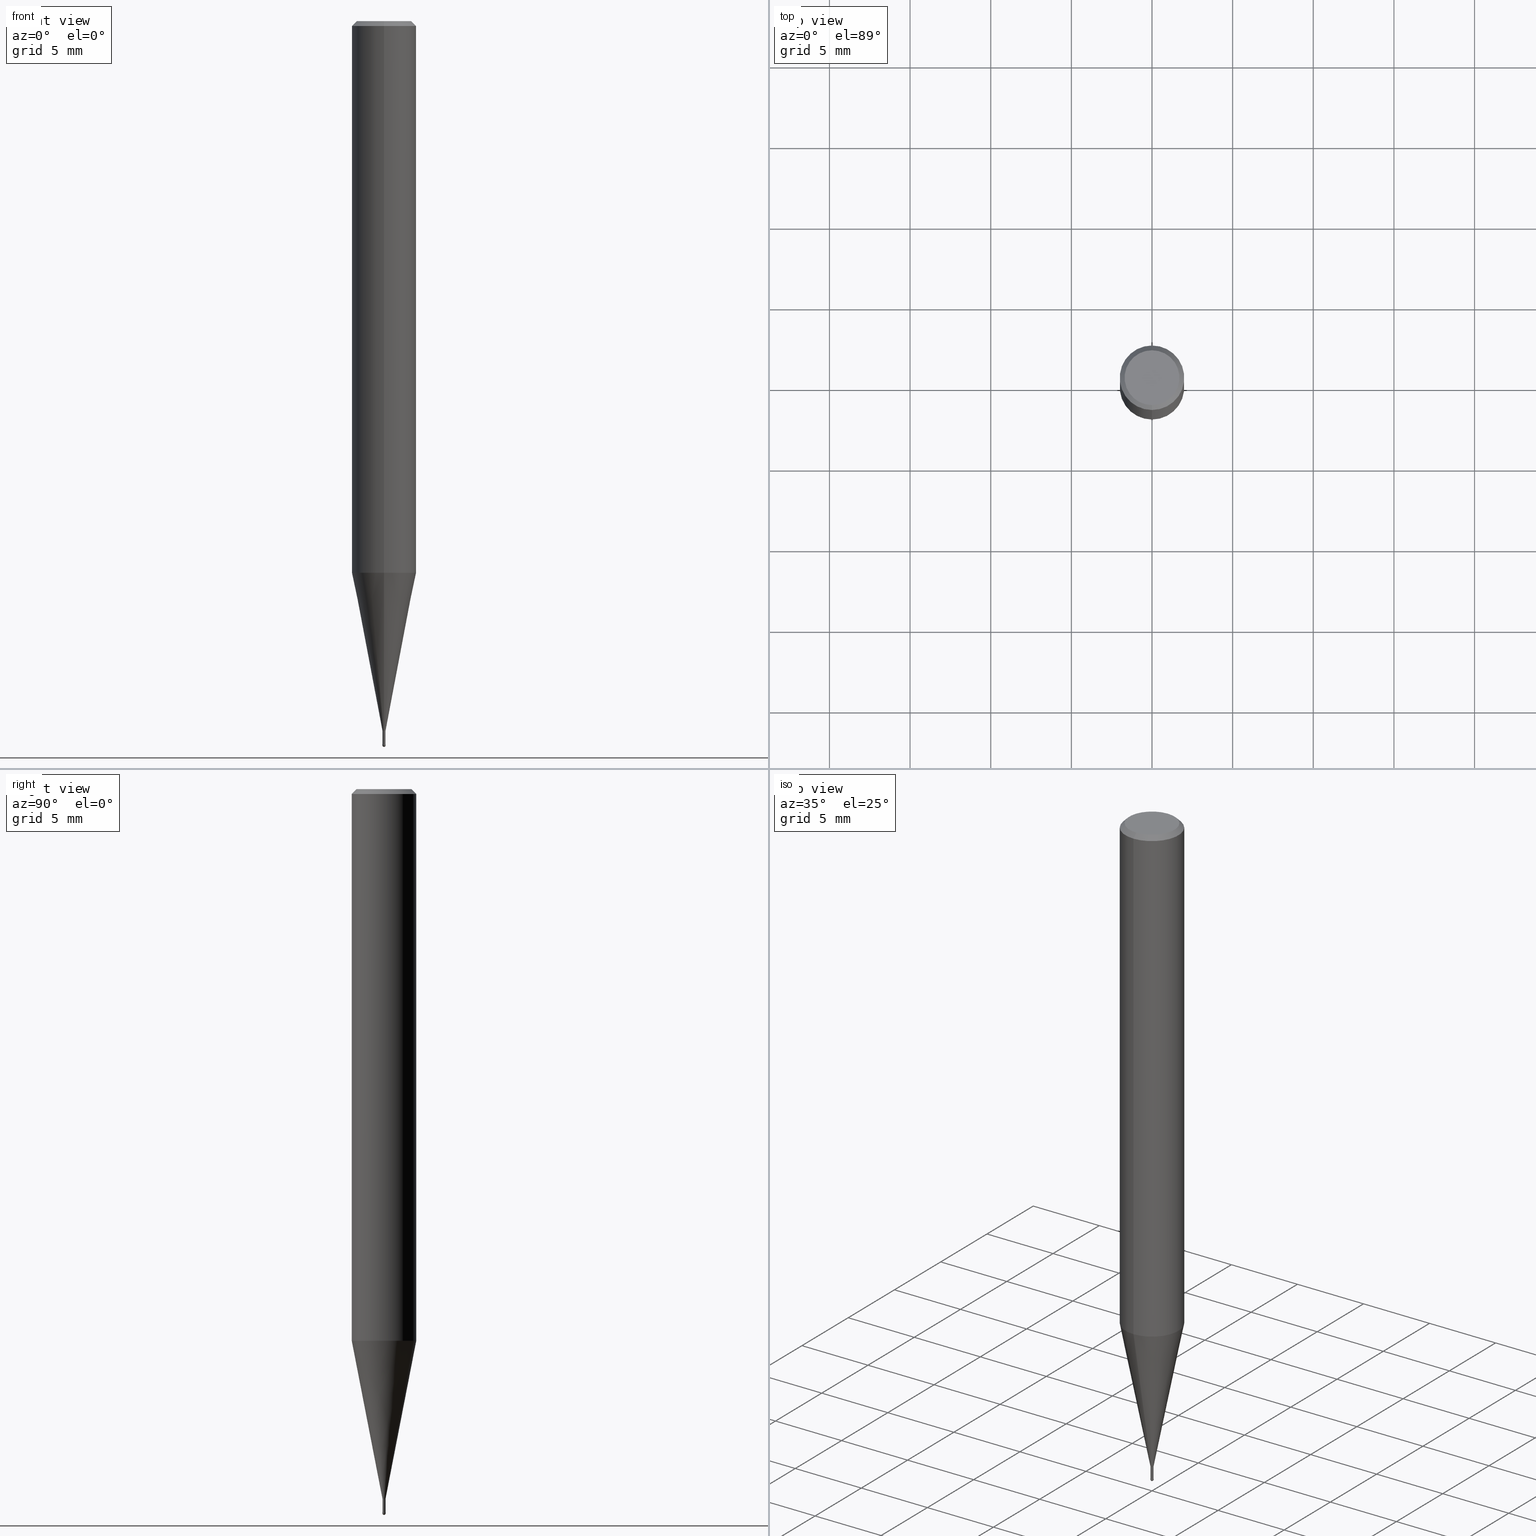
[diagram: canonical four-view strip — front | top / right | iso, engineering-drawing reading convention]
A machine part, canonical four-view strip (front | top / right | iso — engineering-drawing reading convention). The complete STEP part file that produces these views, byte-faithful:
ISO-10303-21;
HEADER;
FILE_DESCRIPTION(('no description'),'unknown implementation level');
FILE_NAME('CSELB2002-010-Huellk.stp','  ',('CIMSOURCE GmbH'),('CADClick - KiM GmbH - www.kimweb.de'),'unknown preprocess','ACIS','unknown authorization');
FILE_SCHEMA(('automotive_design'));
ENDSEC;
DATA;
#1=MECHANICAL_DESIGN_GEOMETRIC_PRESENTATION_REPRESENTATION(' ',(#14,#15,#16,#17,#18,#19,#20,#21,#22,#23,#24,#25,#26,#27,#28,#29,#30,#31,#32,#33,#34,#35,#36,#37,#38,#39,#40,#41,#42,#43,#44,#45,#46,#47,#48,#49,#50,#51,#52,#53,#54,#55,#56,#57,#58,#59,#60,#61,#62,#63,#64,#65,#66,#67,#68,#69,#70,#71,#72,#73,#74),#10);
#2=PRODUCT_DEFINITION_CONTEXT('',#75,'design');
#3=APPLICATION_PROTOCOL_DEFINITION('INTERNATIONAL STANDARD','automotive_design',1994,#75);
#4=PRODUCT_CATEGORY_RELATIONSHIP('NONE','NONE',#76,#77);
#5=SHAPE_DEFINITION_REPRESENTATION(#78,#79);
#6=PRODUCT_DEFINITION_CONTEXT('',#80,'design');
#7=APPLICATION_PROTOCOL_DEFINITION('INTERNATIONAL STANDARD','automotive_design',1994,#80);
#8=PRODUCT_CATEGORY_RELATIONSHIP('NONE','NONE',#81,#82);
#9=SHAPE_DEFINITION_REPRESENTATION(#83,#84);
#10= (GEOMETRIC_REPRESENTATION_CONTEXT(3)GLOBAL_UNCERTAINTY_ASSIGNED_CONTEXT((#87))GLOBAL_UNIT_ASSIGNED_CONTEXT((#89,#90,#91))REPRESENTATION_CONTEXT('NONE','WORKSPACE'));
#14=STYLED_ITEM('',(#93),#94);
#15=STYLED_ITEM('',(#95),#96);
#16=STYLED_ITEM('',(#97),#98);
#17=STYLED_ITEM('',(#99),#100);
#18=STYLED_ITEM('',(#101),#102);
#19=STYLED_ITEM('',(#103),#104);
#20=STYLED_ITEM('',(#105),#106);
#21=STYLED_ITEM('',(#107),#108);
#22=STYLED_ITEM('',(#109),#110);
#23=STYLED_ITEM('',(#111),#112);
#24=STYLED_ITEM('',(#113),#114);
#25=STYLED_ITEM('',(#115),#116);
#26=STYLED_ITEM('',(#117),#118);
#27=STYLED_ITEM('',(#119),#120);
#28=STYLED_ITEM('',(#121),#122);
#29=STYLED_ITEM('',(#123),#124);
#30=STYLED_ITEM('',(#125),#126);
#31=STYLED_ITEM('',(#127),#128);
#32=STYLED_ITEM('',(#129),#130);
#33=STYLED_ITEM('',(#131),#132);
#34=STYLED_ITEM('',(#133),#134);
#35=STYLED_ITEM('',(#135),#136);
#36=STYLED_ITEM('',(#137),#138);
#37=STYLED_ITEM('',(#139),#140);
#38=STYLED_ITEM('',(#141),#142);
#39=STYLED_ITEM('',(#143),#144);
#40=STYLED_ITEM('',(#145),#146);
#41=STYLED_ITEM('',(#147),#148);
#42=STYLED_ITEM('',(#149),#150);
#43=STYLED_ITEM('',(#151),#152);
#44=STYLED_ITEM('',(#153),#154);
#45=STYLED_ITEM('',(#155),#156);
#46=STYLED_ITEM('',(#157),#158);
#47=STYLED_ITEM('',(#159),#160);
#48=STYLED_ITEM('',(#161),#162);
#49=STYLED_ITEM('',(#163),#164);
#50=STYLED_ITEM('',(#165),#166);
#51=STYLED_ITEM('',(#167),#168);
#52=STYLED_ITEM('',(#169),#170);
#53=STYLED_ITEM('',(#171),#172);
#54=STYLED_ITEM('',(#173),#174);
#55=STYLED_ITEM('',(#175),#176);
#56=STYLED_ITEM('',(#177),#178);
#57=STYLED_ITEM('',(#179),#180);
#58=STYLED_ITEM('',(#181),#182);
#59=STYLED_ITEM('',(#183),#184);
#60=STYLED_ITEM('',(#185),#186);
#61=STYLED_ITEM('',(#187),#188);
#62=STYLED_ITEM('',(#189),#190);
#63=STYLED_ITEM('',(#191),#192);
#64=STYLED_ITEM('',(#193),#194);
#65=STYLED_ITEM('',(#195),#196);
#66=STYLED_ITEM('',(#197),#198);
#67=STYLED_ITEM('',(#199),#200);
#68=STYLED_ITEM('',(#201),#202);
#69=STYLED_ITEM('',(#203),#204);
#70=STYLED_ITEM('',(#205),#206);
#71=STYLED_ITEM('',(#207),#208);
#72=STYLED_ITEM('',(#209),#210);
#73=STYLED_ITEM('',(#211),#212);
#74=STYLED_ITEM('',(#213),#214);
#75=APPLICATION_CONTEXT(' ');
#76=PRODUCT_CATEGORY('part','NONE');
#77=PRODUCT_RELATED_PRODUCT_CATEGORY('detail',' ',(#215));
#78=PRODUCT_DEFINITION_SHAPE('NONE','NONE',#216);
#79=ADVANCED_BREP_SHAPE_REPRESENTATION('1',(#120,#217),#10);
#80=APPLICATION_CONTEXT(' ');
#81=PRODUCT_CATEGORY('part','NONE');
#82=PRODUCT_RELATED_PRODUCT_CATEGORY('detail',' ',(#218));
#83=PRODUCT_DEFINITION_SHAPE('NONE','NONE',#219);
#84=ADVANCED_BREP_SHAPE_REPRESENTATION('2',(#100,#220),#10);
#87=UNCERTAINTY_MEASURE_WITH_UNIT(LENGTH_MEASURE(1.0E-006),#89,'','');
#89= (CONVERSION_BASED_UNIT('MILLIMETRE',#223)LENGTH_UNIT()NAMED_UNIT(#226));
#90= (NAMED_UNIT(#228)PLANE_ANGLE_UNIT()SI_UNIT($,.RADIAN.));
#91= (NAMED_UNIT(#228)SOLID_ANGLE_UNIT()SI_UNIT($,.STERADIAN.));
#93=PRESENTATION_STYLE_ASSIGNMENT((#234));
#94=EDGE_CURVE('',#168,#166,#235,.T.);
#95=PRESENTATION_STYLE_ASSIGNMENT((#236));
#96=ADVANCED_FACE('',(#237),#238,.T.);
#97=PRESENTATION_STYLE_ASSIGNMENT((#239));
#98=EDGE_CURVE('',#168,#214,#240,.T.);
#99=PRESENTATION_STYLE_ASSIGNMENT((#241));
#100=MANIFOLD_SOLID_BREP('2',#242);
#101=PRESENTATION_STYLE_ASSIGNMENT((#243));
#102=EDGE_CURVE('',#108,#166,#244,.T.);
#103=PRESENTATION_STYLE_ASSIGNMENT((#245));
#104=EDGE_CURVE('',#200,#132,#246,.T.);
#105=PRESENTATION_STYLE_ASSIGNMENT((#247));
#106=EDGE_CURVE('',#188,#172,#248,.T.);
#107=PRESENTATION_STYLE_ASSIGNMENT((#249));
#108=VERTEX_POINT('',#250);
#109=PRESENTATION_STYLE_ASSIGNMENT((#251));
#110=EDGE_CURVE('',#134,#164,#252,.T.);
#111=PRESENTATION_STYLE_ASSIGNMENT((#253));
#112=EDGE_CURVE('',#142,#156,#254,.T.);
#113=PRESENTATION_STYLE_ASSIGNMENT((#255));
#114=ADVANCED_FACE('',(#256),#257,.T.);
#115=PRESENTATION_STYLE_ASSIGNMENT((#258));
#116=EDGE_CURVE('',#154,#126,#259,.T.);
#117=PRESENTATION_STYLE_ASSIGNMENT((#260));
#118=ADVANCED_FACE('',(#261),#262,.T.);
#119=PRESENTATION_STYLE_ASSIGNMENT((#263));
#120=MANIFOLD_SOLID_BREP('1',#264);
#121=PRESENTATION_STYLE_ASSIGNMENT((#265));
#122=ADVANCED_FACE('',(#266),#267,.T.);
#123=PRESENTATION_STYLE_ASSIGNMENT((#268));
#124=ADVANCED_FACE('',(#269),#270,.T.);
#125=PRESENTATION_STYLE_ASSIGNMENT((#271));
#126=VERTEX_POINT('',#272);
#127=PRESENTATION_STYLE_ASSIGNMENT((#273));
#128=ADVANCED_FACE('',(#274),#275,.T.);
#129=PRESENTATION_STYLE_ASSIGNMENT((#276));
#130=EDGE_CURVE('',#172,#188,#277,.T.);
#131=PRESENTATION_STYLE_ASSIGNMENT((#278));
#132=VERTEX_POINT('',#279);
#133=PRESENTATION_STYLE_ASSIGNMENT((#280));
#134=VERTEX_POINT('',#281);
#135=PRESENTATION_STYLE_ASSIGNMENT((#282));
#136=ADVANCED_FACE('',(#283),#284,.T.);
#137=PRESENTATION_STYLE_ASSIGNMENT((#285));
#138=EDGE_CURVE('',#166,#168,#286,.T.);
#139=PRESENTATION_STYLE_ASSIGNMENT((#287));
#140=VERTEX_POINT('',#288);
#141=PRESENTATION_STYLE_ASSIGNMENT((#289));
#142=VERTEX_POINT('',#290);
#143=PRESENTATION_STYLE_ASSIGNMENT((#291));
#144=EDGE_CURVE('',#168,#166,#292,.T.);
#145=PRESENTATION_STYLE_ASSIGNMENT((#293));
#146=EDGE_CURVE('',#172,#134,#294,.T.);
#147=PRESENTATION_STYLE_ASSIGNMENT((#295));
#148=VERTEX_POINT('',#296);
#149=PRESENTATION_STYLE_ASSIGNMENT((#297));
#150=EDGE_CURVE('',#188,#200,#298,.T.);
#151=PRESENTATION_STYLE_ASSIGNMENT((#299));
#152=EDGE_CURVE('',#132,#172,#300,.T.);
#153=PRESENTATION_STYLE_ASSIGNMENT((#301));
#154=VERTEX_POINT('',#302);
#155=PRESENTATION_STYLE_ASSIGNMENT((#303));
#156=VERTEX_POINT('',#304);
#157=PRESENTATION_STYLE_ASSIGNMENT((#305));
#158=EDGE_CURVE('',#156,#126,#306,.T.);
#159=PRESENTATION_STYLE_ASSIGNMENT((#307));
#160=EDGE_CURVE('',#214,#108,#308,.T.);
#161=PRESENTATION_STYLE_ASSIGNMENT((#309));
#162=ADVANCED_FACE('',(#310,#311),#312,.T.);
#163=PRESENTATION_STYLE_ASSIGNMENT((#313));
#164=VERTEX_POINT('',#314);
#165=PRESENTATION_STYLE_ASSIGNMENT((#315));
#166=VERTEX_POINT('',#316);
#167=PRESENTATION_STYLE_ASSIGNMENT((#317));
#168=VERTEX_POINT('',#318);
#169=PRESENTATION_STYLE_ASSIGNMENT((#319));
#170=EDGE_CURVE('',#142,#140,#320,.T.);
#171=PRESENTATION_STYLE_ASSIGNMENT((#321));
#172=VERTEX_POINT('',#322);
#173=PRESENTATION_STYLE_ASSIGNMENT((#323));
#174=ADVANCED_FACE('',(#324),#325,.T.);
#175=PRESENTATION_STYLE_ASSIGNMENT((#326));
#176=ADVANCED_FACE('',(#327),#328,.T.);
#177=PRESENTATION_STYLE_ASSIGNMENT((#329));
#178=EDGE_CURVE('',#108,#214,#330,.T.);
#179=PRESENTATION_STYLE_ASSIGNMENT((#331));
#180=ADVANCED_FACE('',(#332),#333,.T.);
#181=PRESENTATION_STYLE_ASSIGNMENT((#334));
#182=EDGE_CURVE('',#140,#148,#335,.T.);
#183=PRESENTATION_STYLE_ASSIGNMENT((#336));
#184=EDGE_CURVE('',#156,#142,#337,.T.);
#185=PRESENTATION_STYLE_ASSIGNMENT((#338));
#186=EDGE_CURVE('',#126,#154,#339,.T.);
#187=PRESENTATION_STYLE_ASSIGNMENT((#340));
#188=VERTEX_POINT('',#341);
#189=PRESENTATION_STYLE_ASSIGNMENT((#342));
#190=EDGE_CURVE('',#132,#200,#343,.T.);
#191=PRESENTATION_STYLE_ASSIGNMENT((#344));
#192=EDGE_CURVE('',#164,#188,#345,.T.);
#193=PRESENTATION_STYLE_ASSIGNMENT((#346));
#194=ADVANCED_FACE('',(#347),#348,.T.);
#195=PRESENTATION_STYLE_ASSIGNMENT((#349));
#196=ADVANCED_FACE('',(#350),#351,.T.);
#197=PRESENTATION_STYLE_ASSIGNMENT((#352));
#198=ADVANCED_FACE('',(#353),#354,.T.);
#199=PRESENTATION_STYLE_ASSIGNMENT((#355));
#200=VERTEX_POINT('',#356);
#201=PRESENTATION_STYLE_ASSIGNMENT((#357));
#202=EDGE_CURVE('',#164,#134,#358,.T.);
#203=PRESENTATION_STYLE_ASSIGNMENT((#359));
#204=ADVANCED_FACE('',(#360),#361,.T.);
#205=PRESENTATION_STYLE_ASSIGNMENT((#362));
#206=EDGE_CURVE('',#148,#140,#363,.T.);
#207=PRESENTATION_STYLE_ASSIGNMENT((#364));
#208=EDGE_CURVE('',#154,#142,#365,.T.);
#209=PRESENTATION_STYLE_ASSIGNMENT((#366));
#210=EDGE_CURVE('',#148,#156,#367,.T.);
#211=PRESENTATION_STYLE_ASSIGNMENT((#368));
#212=ADVANCED_FACE('',(#369),#370,.T.);
#213=PRESENTATION_STYLE_ASSIGNMENT((#371));
#214=VERTEX_POINT('',#372);
#215=PRODUCT('1','1','PART-1-DESC',(#373));
#216=PRODUCT_DEFINITION('NONE','NONE',#374,#2);
#217=AXIS2_PLACEMENT_3D('',#375,#376,#377);
#218=PRODUCT('2','2','PART-2-DESC',(#378));
#219=PRODUCT_DEFINITION('NONE','NONE',#379,#6);
#220=AXIS2_PLACEMENT_3D('',#380,#381,#382);
#223=LENGTH_MEASURE_WITH_UNIT(LENGTH_MEASURE(1.0),#383);
#226=DIMENSIONAL_EXPONENTS(1.0,0.0,0.0,0.0,0.0,0.0,0.0);
#228=DIMENSIONAL_EXPONENTS(0.0,0.0,0.0,0.0,0.0,0.0,0.0);
#234=CURVE_STYLE('',#384,POSITIVE_LENGTH_MEASURE(1.0E-006),#385);
#235=CIRCLE('',#386,0.1);
#236=SURFACE_STYLE_USAGE(.BOTH.,#387);
#237=FACE_OUTER_BOUND('',#388,.T.);
#238=PLANE('',#389);
#239=CURVE_STYLE('',#390,POSITIVE_LENGTH_MEASURE(1.0E-006),#391);
#240=LINE('',#392,#393);
#241=SURFACE_STYLE_USAGE(.BOTH.,#394);
#242=CLOSED_SHELL('',(#204,#118,#136,#196,#174));
#243=CURVE_STYLE('',#395,POSITIVE_LENGTH_MEASURE(1.0E-006),#396);
#244=LINE('',#397,#398);
#245=CURVE_STYLE('',#399,POSITIVE_LENGTH_MEASURE(1.0E-006),#400);
#246=CIRCLE('',#401,1.7);
#247=CURVE_STYLE('',#402,POSITIVE_LENGTH_MEASURE(1.0E-006),#403);
#248=CIRCLE('',#404,2.0);
#249=POINT_STYLE(' ',#405,POSITIVE_LENGTH_MEASURE(1.0E-006),#406);
#250=CARTESIAN_POINT('',(0.0,0.0999,-44.84));
#251=CURVE_STYLE('',#407,POSITIVE_LENGTH_MEASURE(1.0E-006),#408);
#252=CIRCLE('',#409,2.0);
#253=CURVE_STYLE('',#410,POSITIVE_LENGTH_MEASURE(1.0E-006),#411);
#254=CIRCLE('',#412,0.09495);
#255=SURFACE_STYLE_USAGE(.BOTH.,#413);
#256=FACE_OUTER_BOUND('',#414,.T.);
#257=CYLINDRICAL_SURFACE('',#415,0.09495);
#258=CURVE_STYLE('',#416,POSITIVE_LENGTH_MEASURE(1.0E-006),#417);
#259=CIRCLE('',#418,0.09495);
#260=SURFACE_STYLE_USAGE(.BOTH.,#419);
#261=FACE_OUTER_BOUND('',#420,.T.);
#262=CONICAL_SURFACE('',#421,0.09995,0.00166666512345941);
#263=SURFACE_STYLE_USAGE(.BOTH.,#422);
#264=CLOSED_SHELL('',(#114,#194,#128,#198,#162,#96,#122,#180,#176,#124,#212));
#265=SURFACE_STYLE_USAGE(.BOTH.,#423);
#266=FACE_OUTER_BOUND('',#424,.T.);
#267=CONICAL_SURFACE('',#425,1.85,0.785398163397453);
#268=SURFACE_STYLE_USAGE(.BOTH.,#426);
#269=FACE_OUTER_BOUND('',#427,.T.);
#270=CYLINDRICAL_SURFACE('',#428,0.09495);
#271=POINT_STYLE(' ',#429,POSITIVE_LENGTH_MEASURE(1.0E-006),#430);
#272=CARTESIAN_POINT('',(0.0,0.09495,-44.84));
#273=SURFACE_STYLE_USAGE(.BOTH.,#431);
#274=FACE_OUTER_BOUND('',#432,.T.);
#275=CYLINDRICAL_SURFACE('',#433,2.0);
#276=CURVE_STYLE('',#434,POSITIVE_LENGTH_MEASURE(1.0E-006),#435);
#277=CIRCLE('',#436,2.0);
#278=POINT_STYLE(' ',#437,POSITIVE_LENGTH_MEASURE(1.0E-006),#438);
#279=CARTESIAN_POINT('',(0.0,1.7,0.0));
#280=POINT_STYLE(' ',#439,POSITIVE_LENGTH_MEASURE(1.0E-006),#440);
#281=CARTESIAN_POINT('',(0.0,2.0,-34.2));
#282=SURFACE_STYLE_USAGE(.BOTH.,#441);
#283=FACE_OUTER_BOUND('',#442,.T.);
#284=PLANE('',#443);
#285=CURVE_STYLE('',#444,POSITIVE_LENGTH_MEASURE(1.0E-006),#445);
#286=CIRCLE('',#446,0.1);
#287=POINT_STYLE(' ',#447,POSITIVE_LENGTH_MEASURE(1.0E-006),#448);
#288=CARTESIAN_POINT('',(2.44915147732706E-016,-1.99995,-34.2));
#289=POINT_STYLE(' ',#449,POSITIVE_LENGTH_MEASURE(1.0E-006),#450);
#290=CARTESIAN_POINT('',(1.16276373295435E-017,-0.09495,-44.0));
#291=CURVE_STYLE('',#451,POSITIVE_LENGTH_MEASURE(1.0E-006),#452);
#292=CIRCLE('',#453,0.1);
#293=CURVE_STYLE('',#454,POSITIVE_LENGTH_MEASURE(1.0E-006),#455);
#294=LINE('',#456,#457);
#295=POINT_STYLE(' ',#458,POSITIVE_LENGTH_MEASURE(1.0E-006),#459);
#296=CARTESIAN_POINT('',(0.0,1.99995,-34.2));
#297=CURVE_STYLE('',#460,POSITIVE_LENGTH_MEASURE(1.0E-006),#461);
#298=LINE('',#462,#463);
#299=CURVE_STYLE('',#464,POSITIVE_LENGTH_MEASURE(1.0E-006),#465);
#300=LINE('',#466,#467);
#301=POINT_STYLE(' ',#468,POSITIVE_LENGTH_MEASURE(1.0E-006),#469);
#302=CARTESIAN_POINT('',(1.16276373295435E-017,-0.09495,-44.84));
#303=POINT_STYLE(' ',#470,POSITIVE_LENGTH_MEASURE(1.0E-006),#471);
#304=CARTESIAN_POINT('',(0.0,0.09495,-44.0));
#305=CURVE_STYLE('',#472,POSITIVE_LENGTH_MEASURE(1.0E-006),#473);
#306=LINE('',#474,#475);
#307=CURVE_STYLE('',#476,POSITIVE_LENGTH_MEASURE(1.0E-006),#477);
#308=CIRCLE('',#478,0.0999);
#309=SURFACE_STYLE_USAGE(.BOTH.,#479);
#310=FACE_OUTER_BOUND('',#480,.T.);
#311=FACE_BOUND('',#481,.T.);
#312=PLANE('',#482);
#313=POINT_STYLE(' ',#483,POSITIVE_LENGTH_MEASURE(1.0E-006),#484);
#314=CARTESIAN_POINT('',(2.44921270764475E-016,-2.0,-34.2));
#315=POINT_STYLE(' ',#485,POSITIVE_LENGTH_MEASURE(1.0E-006),#486);
#316=CARTESIAN_POINT('',(0.0,0.1,-44.9));
#317=POINT_STYLE(' ',#487,POSITIVE_LENGTH_MEASURE(1.0E-006),#488);
#318=CARTESIAN_POINT('',(1.22460635382238E-017,-0.1,-44.9));
#319=CURVE_STYLE('',#489,POSITIVE_LENGTH_MEASURE(1.0E-006),#490);
#320=LINE('',#491,#492);
#321=POINT_STYLE(' ',#493,POSITIVE_LENGTH_MEASURE(1.0E-006),#494);
#322=CARTESIAN_POINT('',(0.0,2.0,-0.299999999999997));
#323=SURFACE_STYLE_USAGE(.BOTH.,#495);
#324=FACE_OUTER_BOUND('',#496,.T.);
#325=SPHERICAL_SURFACE('',#497,0.1);
#326=SURFACE_STYLE_USAGE(.BOTH.,#498);
#327=FACE_OUTER_BOUND('',#499,.T.);
#328=CONICAL_SURFACE('',#500,1.04745,0.191993392580482);
#329=CURVE_STYLE('',#501,POSITIVE_LENGTH_MEASURE(1.0E-006),#502);
#330=CIRCLE('',#503,0.0999);
#331=SURFACE_STYLE_USAGE(.BOTH.,#504);
#332=FACE_OUTER_BOUND('',#505,.T.);
#333=CYLINDRICAL_SURFACE('',#506,2.0);
#334=CURVE_STYLE('',#507,POSITIVE_LENGTH_MEASURE(1.0E-006),#508);
#335=CIRCLE('',#509,1.99995);
#336=CURVE_STYLE('',#510,POSITIVE_LENGTH_MEASURE(1.0E-006),#511);
#337=CIRCLE('',#512,0.09495);
#338=CURVE_STYLE('',#513,POSITIVE_LENGTH_MEASURE(1.0E-006),#514);
#339=CIRCLE('',#515,0.09495);
#340=POINT_STYLE(' ',#516,POSITIVE_LENGTH_MEASURE(1.0E-006),#517);
#341=CARTESIAN_POINT('',(2.44921270764475E-016,-2.0,-0.299999999999997));
#342=CURVE_STYLE('',#518,POSITIVE_LENGTH_MEASURE(1.0E-006),#519);
#343=CIRCLE('',#520,1.7);
#344=CURVE_STYLE('',#521,POSITIVE_LENGTH_MEASURE(1.0E-006),#522);
#345=LINE('',#523,#524);
#346=SURFACE_STYLE_USAGE(.BOTH.,#525);
#347=FACE_OUTER_BOUND('',#526,.T.);
#348=CONICAL_SURFACE('',#527,1.04745,0.191993392580482);
#349=SURFACE_STYLE_USAGE(.BOTH.,#528);
#350=FACE_OUTER_BOUND('',#529,.T.);
#351=CONICAL_SURFACE('',#530,0.09995,0.00166666512345941);
#352=SURFACE_STYLE_USAGE(.BOTH.,#531);
#353=FACE_OUTER_BOUND('',#532,.T.);
#354=CONICAL_SURFACE('',#533,1.85,0.785398163397453);
#355=POINT_STYLE(' ',#534,POSITIVE_LENGTH_MEASURE(1.0E-006),#535);
#356=CARTESIAN_POINT('',(2.08183080149804E-016,-1.7,0.0));
#357=CURVE_STYLE('',#536,POSITIVE_LENGTH_MEASURE(1.0E-006),#537);
#358=CIRCLE('',#538,2.0);
#359=SURFACE_STYLE_USAGE(.BOTH.,#539);
#360=FACE_OUTER_BOUND('',#540,.T.);
#361=SPHERICAL_SURFACE('',#541,0.1);
#362=CURVE_STYLE('',#542,POSITIVE_LENGTH_MEASURE(1.0E-006),#543);
#363=CIRCLE('',#544,1.99995);
#364=CURVE_STYLE('',#545,POSITIVE_LENGTH_MEASURE(1.0E-006),#546);
#365=LINE('',#547,#548);
#366=CURVE_STYLE('',#549,POSITIVE_LENGTH_MEASURE(1.0E-006),#550);
#367=LINE('',#551,#552);
#368=SURFACE_STYLE_USAGE(.BOTH.,#553);
#369=FACE_OUTER_BOUND('',#554,.T.);
#370=PLANE('',#555);
#371=POINT_STYLE(' ',#556,POSITIVE_LENGTH_MEASURE(1.0E-006),#557);
#372=CARTESIAN_POINT('',(1.22338174746855E-017,-0.0999,-44.84));
#373=PRODUCT_CONTEXT('',#75,'mechanical');
#374=PRODUCT_DEFINITION_FORMATION_WITH_SPECIFIED_SOURCE(' ','NONE',#215,.NOT_KNOWN.);
#375=CARTESIAN_POINT('',(0.0,0.0,0.0));
#376=DIRECTION('',(0.0,0.0,1.0));
#377=DIRECTION('',(1.0,0.0,0.0));
#378=PRODUCT_CONTEXT('',#80,'mechanical');
#379=PRODUCT_DEFINITION_FORMATION_WITH_SPECIFIED_SOURCE(' ','NONE',#218,.NOT_KNOWN.);
#380=CARTESIAN_POINT('',(0.0,0.0,0.0));
#381=DIRECTION('',(0.0,0.0,1.0));
#382=DIRECTION('',(1.0,0.0,0.0));
#383= (NAMED_UNIT(#226)LENGTH_UNIT()SI_UNIT(.MILLI.,.METRE.));
#384=DRAUGHTING_PRE_DEFINED_CURVE_FONT('continuous');
#385=COLOUR_RGB('',0.800000011920929,0.800000011920929,0.800000011920929);
#386=AXIS2_PLACEMENT_3D('',#559,#560,#561);
#387=SURFACE_SIDE_STYLE('',(#562));
#388=EDGE_LOOP('',(#563,#564));
#389=AXIS2_PLACEMENT_3D('',#565,#566,#567);
#390=DRAUGHTING_PRE_DEFINED_CURVE_FONT('continuous');
#391=COLOUR_RGB('',0.800000011920929,0.800000011920929,0.800000011920929);
#392=CARTESIAN_POINT('',(1.22399405064547E-017,-0.09995,-44.87));
#393=VECTOR('',#568,1.0);
#394=SURFACE_SIDE_STYLE('',(#569));
#395=DRAUGHTING_PRE_DEFINED_CURVE_FONT('continuous');
#396=COLOUR_RGB('',0.800000011920929,0.800000011920929,0.800000011920929);
#397=CARTESIAN_POINT('',(-1.22399405064547E-017,0.09995,-44.87));
#398=VECTOR('',#570,1.0);
#399=DRAUGHTING_PRE_DEFINED_CURVE_FONT('continuous');
#400=COLOUR_RGB('',0.498039215803146,0.498039215803146,0.498039215803146);
#401=AXIS2_PLACEMENT_3D('',#571,#572,#573);
#402=DRAUGHTING_PRE_DEFINED_CURVE_FONT('continuous');
#403=COLOUR_RGB('',0.498039215803146,0.498039215803146,0.498039215803146);
#404=AXIS2_PLACEMENT_3D('',#574,#575,#576);
#405=PRE_DEFINED_MARKER('');
#406=COLOUR_RGB('',0.800000011920929,0.800000011920929,0.800000011920929);
#407=DRAUGHTING_PRE_DEFINED_CURVE_FONT('continuous');
#408=COLOUR_RGB('',0.498039215803146,0.498039215803146,0.498039215803146);
#409=AXIS2_PLACEMENT_3D('',#577,#578,#579);
#410=DRAUGHTING_PRE_DEFINED_CURVE_FONT('continuous');
#411=COLOUR_RGB('',0.498039215803146,0.498039215803146,0.498039215803146);
#412=AXIS2_PLACEMENT_3D('',#580,#581,#582);
#413=SURFACE_SIDE_STYLE('',(#583));
#414=EDGE_LOOP('',(#584,#585,#586,#587));
#415=AXIS2_PLACEMENT_3D('',#588,#589,#590);
#416=DRAUGHTING_PRE_DEFINED_CURVE_FONT('continuous');
#417=COLOUR_RGB('',0.498039215803146,0.498039215803146,0.498039215803146);
#418=AXIS2_PLACEMENT_3D('',#591,#592,#593);
#419=SURFACE_SIDE_STYLE('',(#594));
#420=EDGE_LOOP('',(#595,#596,#597,#598));
#421=AXIS2_PLACEMENT_3D('',#599,#600,#601);
#422=SURFACE_SIDE_STYLE('',(#602));
#423=SURFACE_SIDE_STYLE('',(#603));
#424=EDGE_LOOP('',(#604,#605,#606,#607));
#425=AXIS2_PLACEMENT_3D('',#608,#609,#610);
#426=SURFACE_SIDE_STYLE('',(#611));
#427=EDGE_LOOP('',(#612,#613,#614,#615));
#428=AXIS2_PLACEMENT_3D('',#616,#617,#618);
#429=PRE_DEFINED_MARKER('');
#430=COLOUR_RGB('',0.498039215803146,0.498039215803146,0.498039215803146);
#431=SURFACE_SIDE_STYLE('',(#619));
#432=EDGE_LOOP('',(#620,#621,#622,#623));
#433=AXIS2_PLACEMENT_3D('',#624,#625,#626);
#434=DRAUGHTING_PRE_DEFINED_CURVE_FONT('continuous');
#435=COLOUR_RGB('',0.498039215803146,0.498039215803146,0.498039215803146);
#436=AXIS2_PLACEMENT_3D('',#627,#628,#629);
#437=PRE_DEFINED_MARKER('');
#438=COLOUR_RGB('',0.498039215803146,0.498039215803146,0.498039215803146);
#439=PRE_DEFINED_MARKER('');
#440=COLOUR_RGB('',0.498039215803146,0.498039215803146,0.498039215803146);
#441=SURFACE_SIDE_STYLE('',(#630));
#442=EDGE_LOOP('',(#631,#632));
#443=AXIS2_PLACEMENT_3D('',#633,#634,#635);
#444=DRAUGHTING_PRE_DEFINED_CURVE_FONT('continuous');
#445=COLOUR_RGB('',0.800000011920929,0.800000011920929,0.800000011920929);
#446=AXIS2_PLACEMENT_3D('',#636,#637,#638);
#447=PRE_DEFINED_MARKER('');
#448=COLOUR_RGB('',0.498039215803146,0.498039215803146,0.498039215803146);
#449=PRE_DEFINED_MARKER('');
#450=COLOUR_RGB('',0.498039215803146,0.498039215803146,0.498039215803146);
#451=DRAUGHTING_PRE_DEFINED_CURVE_FONT('continuous');
#452=COLOUR_RGB('',0.800000011920929,0.800000011920929,0.800000011920929);
#453=AXIS2_PLACEMENT_3D('',#639,#640,#641);
#454=DRAUGHTING_PRE_DEFINED_CURVE_FONT('continuous');
#455=COLOUR_RGB('',0.498039215803146,0.498039215803146,0.498039215803146);
#456=CARTESIAN_POINT('',(-2.44921270764475E-016,2.0,-17.25));
#457=VECTOR('',#642,1.0);
#458=PRE_DEFINED_MARKER('');
#459=COLOUR_RGB('',0.498039215803146,0.498039215803146,0.498039215803146);
#460=DRAUGHTING_PRE_DEFINED_CURVE_FONT('continuous');
#461=COLOUR_RGB('',0.498039215803146,0.498039215803146,0.498039215803146);
#462=CARTESIAN_POINT('',(2.2655217545714E-016,-1.85,-0.149999999999999));
#463=VECTOR('',#643,1.0);
#464=DRAUGHTING_PRE_DEFINED_CURVE_FONT('continuous');
#465=COLOUR_RGB('',0.498039215803146,0.498039215803146,0.498039215803146);
#466=CARTESIAN_POINT('',(-2.2655217545714E-016,1.85,-0.149999999999999));
#467=VECTOR('',#644,1.0);
#468=PRE_DEFINED_MARKER('');
#469=COLOUR_RGB('',0.498039215803146,0.498039215803146,0.498039215803146);
#470=PRE_DEFINED_MARKER('');
#471=COLOUR_RGB('',0.498039215803146,0.498039215803146,0.498039215803146);
#472=DRAUGHTING_PRE_DEFINED_CURVE_FONT('continuous');
#473=COLOUR_RGB('',0.498039215803146,0.498039215803146,0.498039215803146);
#474=CARTESIAN_POINT('',(-1.16276373295435E-017,0.09495,-44.42));
#475=VECTOR('',#645,1.0);
#476=DRAUGHTING_PRE_DEFINED_CURVE_FONT('continuous');
#477=COLOUR_RGB('',0.800000011920929,0.800000011920929,0.800000011920929);
#478=AXIS2_PLACEMENT_3D('',#646,#647,#648);
#479=SURFACE_SIDE_STYLE('',(#649));
#480=EDGE_LOOP('',(#650,#651));
#481=EDGE_LOOP('',(#652,#653));
#482=AXIS2_PLACEMENT_3D('',#654,#655,#656);
#483=PRE_DEFINED_MARKER('');
#484=COLOUR_RGB('',0.498039215803146,0.498039215803146,0.498039215803146);
#485=PRE_DEFINED_MARKER('');
#486=COLOUR_RGB('',0.800000011920929,0.800000011920929,0.800000011920929);
#487=PRE_DEFINED_MARKER('');
#488=COLOUR_RGB('',0.800000011920929,0.800000011920929,0.800000011920929);
#489=DRAUGHTING_PRE_DEFINED_CURVE_FONT('continuous');
#490=COLOUR_RGB('',0.498039215803146,0.498039215803146,0.498039215803146);
#491=CARTESIAN_POINT('',(1.28271392531125E-016,-1.04745,-39.1));
#492=VECTOR('',#657,1.0);
#493=PRE_DEFINED_MARKER('');
#494=COLOUR_RGB('',0.498039215803146,0.498039215803146,0.498039215803146);
#495=SURFACE_SIDE_STYLE('',(#658));
#496=EDGE_LOOP('',(#659,#660));
#497=AXIS2_PLACEMENT_3D('',#661,#662,#663);
#498=SURFACE_SIDE_STYLE('',(#664));
#499=EDGE_LOOP('',(#665,#666,#667,#668));
#500=AXIS2_PLACEMENT_3D('',#669,#670,#671);
#501=DRAUGHTING_PRE_DEFINED_CURVE_FONT('continuous');
#502=COLOUR_RGB('',0.800000011920929,0.800000011920929,0.800000011920929);
#503=AXIS2_PLACEMENT_3D('',#672,#673,#674);
#504=SURFACE_SIDE_STYLE('',(#675));
#505=EDGE_LOOP('',(#676,#677,#678,#679));
#506=AXIS2_PLACEMENT_3D('',#680,#681,#682);
#507=DRAUGHTING_PRE_DEFINED_CURVE_FONT('continuous');
#508=COLOUR_RGB('',0.498039215803146,0.498039215803146,0.498039215803146);
#509=AXIS2_PLACEMENT_3D('',#683,#684,#685);
#510=DRAUGHTING_PRE_DEFINED_CURVE_FONT('continuous');
#511=COLOUR_RGB('',0.498039215803146,0.498039215803146,0.498039215803146);
#512=AXIS2_PLACEMENT_3D('',#686,#687,#688);
#513=DRAUGHTING_PRE_DEFINED_CURVE_FONT('continuous');
#514=COLOUR_RGB('',0.498039215803146,0.498039215803146,0.498039215803146);
#515=AXIS2_PLACEMENT_3D('',#689,#690,#691);
#516=PRE_DEFINED_MARKER('');
#517=COLOUR_RGB('',0.498039215803146,0.498039215803146,0.498039215803146);
#518=DRAUGHTING_PRE_DEFINED_CURVE_FONT('continuous');
#519=COLOUR_RGB('',0.498039215803146,0.498039215803146,0.498039215803146);
#520=AXIS2_PLACEMENT_3D('',#692,#693,#694);
#521=DRAUGHTING_PRE_DEFINED_CURVE_FONT('continuous');
#522=COLOUR_RGB('',0.498039215803146,0.498039215803146,0.498039215803146);
#523=CARTESIAN_POINT('',(2.44921270764475E-016,-2.0,-17.25));
#524=VECTOR('',#695,1.0);
#525=SURFACE_SIDE_STYLE('',(#696));
#526=EDGE_LOOP('',(#697,#698,#699,#700));
#527=AXIS2_PLACEMENT_3D('',#701,#702,#703);
#528=SURFACE_SIDE_STYLE('',(#704));
#529=EDGE_LOOP('',(#705,#706,#707,#708));
#530=AXIS2_PLACEMENT_3D('',#709,#710,#711);
#531=SURFACE_SIDE_STYLE('',(#712));
#532=EDGE_LOOP('',(#713,#714,#715,#716));
#533=AXIS2_PLACEMENT_3D('',#717,#718,#719);
#534=PRE_DEFINED_MARKER('');
#535=COLOUR_RGB('',0.498039215803146,0.498039215803146,0.498039215803146);
#536=DRAUGHTING_PRE_DEFINED_CURVE_FONT('continuous');
#537=COLOUR_RGB('',0.498039215803146,0.498039215803146,0.498039215803146);
#538=AXIS2_PLACEMENT_3D('',#720,#721,#722);
#539=SURFACE_SIDE_STYLE('',(#723));
#540=EDGE_LOOP('',(#724,#725));
#541=AXIS2_PLACEMENT_3D('',#726,#727,#728);
#542=DRAUGHTING_PRE_DEFINED_CURVE_FONT('continuous');
#543=COLOUR_RGB('',0.498039215803146,0.498039215803146,0.498039215803146);
#544=AXIS2_PLACEMENT_3D('',#729,#730,#731);
#545=DRAUGHTING_PRE_DEFINED_CURVE_FONT('continuous');
#546=COLOUR_RGB('',0.498039215803146,0.498039215803146,0.498039215803146);
#547=CARTESIAN_POINT('',(1.16276373295435E-017,-0.09495,-44.42));
#548=VECTOR('',#732,1.0);
#549=DRAUGHTING_PRE_DEFINED_CURVE_FONT('continuous');
#550=COLOUR_RGB('',0.498039215803146,0.498039215803146,0.498039215803146);
#551=CARTESIAN_POINT('',(-1.28271392531125E-016,1.04745,-39.1));
#552=VECTOR('',#733,1.0);
#553=SURFACE_SIDE_STYLE('',(#734));
#554=EDGE_LOOP('',(#735,#736));
#555=AXIS2_PLACEMENT_3D('',#737,#738,#739);
#556=PRE_DEFINED_MARKER('');
#557=COLOUR_RGB('',0.800000011920929,0.800000011920929,0.800000011920929);
#559=CARTESIAN_POINT('',(0.0,0.0,-44.9));
#560=DIRECTION('',(1.0,0.0,1.22460635382236E-016));
#561=DIRECTION('',(-1.22460635382236E-016,0.0,1.0));
#562=SURFACE_STYLE_FILL_AREA(#740);
#563=ORIENTED_EDGE('',*,*,#190,.F.);
#564=ORIENTED_EDGE('',*,*,#104,.F.);
#565=CARTESIAN_POINT('',(0.0,0.85,0.0));
#566=DIRECTION('',(-0.0,0.0,1.0));
#567=DIRECTION('',(0.0,-1.0,0.0));
#568=DIRECTION('',(-2.041007754973E-019,0.00166666435185672,0.999998611114005));
#569=SURFACE_STYLE_FILL_AREA(#741);
#570=DIRECTION('',(-2.041007754973E-019,0.00166666435185672,-0.999998611114005));
#571=CARTESIAN_POINT('',(0.0,0.0,0.0));
#572=DIRECTION('',(0.0,0.0,-1.0));
#573=DIRECTION('',(0.0,1.0,0.0));
#574=CARTESIAN_POINT('',(0.0,0.0,-0.299999999999997));
#575=DIRECTION('',(0.0,0.0,-1.0));
#576=DIRECTION('',(0.0,1.0,0.0));
#577=CARTESIAN_POINT('',(0.0,0.0,-34.2));
#578=DIRECTION('',(0.0,0.0,-1.0));
#579=DIRECTION('',(0.0,1.0,0.0));
#580=CARTESIAN_POINT('',(0.0,0.0,-44.0));
#581=DIRECTION('',(0.0,0.0,-1.0));
#582=DIRECTION('',(0.0,1.0,0.0));
#583=SURFACE_STYLE_FILL_AREA(#742);
#584=ORIENTED_EDGE('',*,*,#158,.F.);
#585=ORIENTED_EDGE('',*,*,#184,.T.);
#586=ORIENTED_EDGE('',*,*,#208,.F.);
#587=ORIENTED_EDGE('',*,*,#186,.F.);
#588=CARTESIAN_POINT('',(0.0,0.0,-44.42));
#589=DIRECTION('',(-0.0,-0.0,1.0));
#590=DIRECTION('',(0.0,1.0,0.0));
#591=CARTESIAN_POINT('',(0.0,0.0,-44.84));
#592=DIRECTION('',(0.0,0.0,-1.0));
#593=DIRECTION('',(0.0,1.0,0.0));
#594=SURFACE_STYLE_FILL_AREA(#743);
#595=ORIENTED_EDGE('',*,*,#102,.F.);
#596=ORIENTED_EDGE('',*,*,#178,.T.);
#597=ORIENTED_EDGE('',*,*,#98,.F.);
#598=ORIENTED_EDGE('',*,*,#138,.F.);
#599=CARTESIAN_POINT('',(0.0,0.0,-44.87));
#600=DIRECTION('',(0.0,-0.0,-1.0));
#601=DIRECTION('',(0.0,1.0,0.0));
#602=SURFACE_STYLE_FILL_AREA(#744);
#603=SURFACE_STYLE_FILL_AREA(#745);
#604=ORIENTED_EDGE('',*,*,#152,.T.);
#605=ORIENTED_EDGE('',*,*,#106,.F.);
#606=ORIENTED_EDGE('',*,*,#150,.T.);
#607=ORIENTED_EDGE('',*,*,#104,.T.);
#608=CARTESIAN_POINT('',(0.0,0.0,-0.149999999999999));
#609=DIRECTION('',(0.0,-0.0,-1.0));
#610=DIRECTION('',(0.0,1.0,0.0));
#611=SURFACE_STYLE_FILL_AREA(#746);
#612=ORIENTED_EDGE('',*,*,#158,.T.);
#613=ORIENTED_EDGE('',*,*,#116,.F.);
#614=ORIENTED_EDGE('',*,*,#208,.T.);
#615=ORIENTED_EDGE('',*,*,#112,.T.);
#616=CARTESIAN_POINT('',(0.0,0.0,-44.42));
#617=DIRECTION('',(-0.0,-0.0,1.0));
#618=DIRECTION('',(0.0,1.0,0.0));
#619=SURFACE_STYLE_FILL_AREA(#747);
#620=ORIENTED_EDGE('',*,*,#146,.F.);
#621=ORIENTED_EDGE('',*,*,#130,.T.);
#622=ORIENTED_EDGE('',*,*,#192,.F.);
#623=ORIENTED_EDGE('',*,*,#110,.F.);
#624=CARTESIAN_POINT('',(0.0,0.0,-17.25));
#625=DIRECTION('',(-0.0,-0.0,1.0));
#626=DIRECTION('',(0.0,1.0,0.0));
#627=CARTESIAN_POINT('',(0.0,0.0,-0.299999999999997));
#628=DIRECTION('',(0.0,0.0,-1.0));
#629=DIRECTION('',(0.0,1.0,0.0));
#630=SURFACE_STYLE_FILL_AREA(#748);
#631=ORIENTED_EDGE('',*,*,#178,.F.);
#632=ORIENTED_EDGE('',*,*,#160,.F.);
#633=CARTESIAN_POINT('',(0.0,0.04995,-44.84));
#634=DIRECTION('',(-0.0,0.0,1.0));
#635=DIRECTION('',(0.0,-1.0,0.0));
#636=CARTESIAN_POINT('',(0.0,0.0,-44.9));
#637=DIRECTION('',(0.0,0.0,-1.0));
#638=DIRECTION('',(0.0,1.0,0.0));
#639=CARTESIAN_POINT('',(0.0,0.0,-44.9));
#640=DIRECTION('',(0.0,0.0,-1.0));
#641=DIRECTION('',(0.0,1.0,0.0));
#642=DIRECTION('',(0.0,0.0,-1.0));
#643=DIRECTION('',(-8.6592745707194E-017,0.707106781186551,0.707106781186544));
#644=DIRECTION('',(-8.6592745707194E-017,0.707106781186551,-0.707106781186544));
#645=DIRECTION('',(0.0,0.0,-1.0));
#646=CARTESIAN_POINT('',(0.0,0.0,-44.84));
#647=DIRECTION('',(0.0,0.0,-1.0));
#648=DIRECTION('',(0.0,1.0,0.0));
#649=SURFACE_STYLE_FILL_AREA(#749);
#650=ORIENTED_EDGE('',*,*,#110,.T.);
#651=ORIENTED_EDGE('',*,*,#202,.T.);
#652=ORIENTED_EDGE('',*,*,#206,.F.);
#653=ORIENTED_EDGE('',*,*,#182,.F.);
#654=CARTESIAN_POINT('',(0.0,1.0,-34.2));
#655=DIRECTION('',(0.0,0.0,-1.0));
#656=DIRECTION('',(0.0,1.0,0.0));
#657=DIRECTION('',(2.33674533048507E-017,-0.190816038410332,0.981625814394358));
#658=SURFACE_STYLE_FILL_AREA(#750);
#659=ORIENTED_EDGE('',*,*,#94,.T.);
#660=ORIENTED_EDGE('',*,*,#138,.T.);
#661=CARTESIAN_POINT('',(0.0,0.0,-44.9));
#662=DIRECTION('',(0.0,1.0,0.0));
#663=DIRECTION('',(0.0,0.0,-1.0));
#664=SURFACE_STYLE_FILL_AREA(#751);
#665=ORIENTED_EDGE('',*,*,#210,.T.);
#666=ORIENTED_EDGE('',*,*,#112,.F.);
#667=ORIENTED_EDGE('',*,*,#170,.T.);
#668=ORIENTED_EDGE('',*,*,#182,.T.);
#669=CARTESIAN_POINT('',(0.0,0.0,-39.1));
#670=DIRECTION('',(-0.0,-0.0,1.0));
#671=DIRECTION('',(0.0,1.0,0.0));
#672=CARTESIAN_POINT('',(0.0,0.0,-44.84));
#673=DIRECTION('',(0.0,0.0,-1.0));
#674=DIRECTION('',(0.0,1.0,0.0));
#675=SURFACE_STYLE_FILL_AREA(#752);
#676=ORIENTED_EDGE('',*,*,#146,.T.);
#677=ORIENTED_EDGE('',*,*,#202,.F.);
#678=ORIENTED_EDGE('',*,*,#192,.T.);
#679=ORIENTED_EDGE('',*,*,#106,.T.);
#680=CARTESIAN_POINT('',(0.0,0.0,-17.25));
#681=DIRECTION('',(-0.0,-0.0,1.0));
#682=DIRECTION('',(0.0,1.0,0.0));
#683=CARTESIAN_POINT('',(0.0,0.0,-34.2));
#684=DIRECTION('',(0.0,0.0,-1.0));
#685=DIRECTION('',(0.0,1.0,0.0));
#686=CARTESIAN_POINT('',(0.0,0.0,-44.0));
#687=DIRECTION('',(0.0,0.0,-1.0));
#688=DIRECTION('',(0.0,1.0,0.0));
#689=CARTESIAN_POINT('',(0.0,0.0,-44.84));
#690=DIRECTION('',(0.0,0.0,-1.0));
#691=DIRECTION('',(0.0,1.0,0.0));
#692=CARTESIAN_POINT('',(0.0,0.0,0.0));
#693=DIRECTION('',(0.0,0.0,-1.0));
#694=DIRECTION('',(0.0,1.0,0.0));
#695=DIRECTION('',(-0.0,-0.0,1.0));
#696=SURFACE_STYLE_FILL_AREA(#753);
#697=ORIENTED_EDGE('',*,*,#210,.F.);
#698=ORIENTED_EDGE('',*,*,#206,.T.);
#699=ORIENTED_EDGE('',*,*,#170,.F.);
#700=ORIENTED_EDGE('',*,*,#184,.F.);
#701=CARTESIAN_POINT('',(0.0,0.0,-39.1));
#702=DIRECTION('',(-0.0,-0.0,1.0));
#703=DIRECTION('',(0.0,1.0,0.0));
#704=SURFACE_STYLE_FILL_AREA(#754);
#705=ORIENTED_EDGE('',*,*,#102,.T.);
#706=ORIENTED_EDGE('',*,*,#144,.F.);
#707=ORIENTED_EDGE('',*,*,#98,.T.);
#708=ORIENTED_EDGE('',*,*,#160,.T.);
#709=CARTESIAN_POINT('',(0.0,0.0,-44.87));
#710=DIRECTION('',(0.0,-0.0,-1.0));
#711=DIRECTION('',(0.0,1.0,0.0));
#712=SURFACE_STYLE_FILL_AREA(#755);
#713=ORIENTED_EDGE('',*,*,#152,.F.);
#714=ORIENTED_EDGE('',*,*,#190,.T.);
#715=ORIENTED_EDGE('',*,*,#150,.F.);
#716=ORIENTED_EDGE('',*,*,#130,.F.);
#717=CARTESIAN_POINT('',(0.0,0.0,-0.149999999999999));
#718=DIRECTION('',(0.0,-0.0,-1.0));
#719=DIRECTION('',(0.0,1.0,0.0));
#720=CARTESIAN_POINT('',(0.0,0.0,-34.2));
#721=DIRECTION('',(0.0,0.0,-1.0));
#722=DIRECTION('',(0.0,1.0,0.0));
#723=SURFACE_STYLE_FILL_AREA(#756);
#724=ORIENTED_EDGE('',*,*,#94,.F.);
#725=ORIENTED_EDGE('',*,*,#144,.T.);
#726=CARTESIAN_POINT('',(0.0,0.0,-44.9));
#727=DIRECTION('',(0.0,1.0,0.0));
#728=DIRECTION('',(0.0,0.0,-1.0));
#729=CARTESIAN_POINT('',(0.0,0.0,-34.2));
#730=DIRECTION('',(0.0,0.0,-1.0));
#731=DIRECTION('',(0.0,1.0,0.0));
#732=DIRECTION('',(-0.0,-0.0,1.0));
#733=DIRECTION('',(2.33674533048507E-017,-0.190816038410332,-0.981625814394358));
#734=SURFACE_STYLE_FILL_AREA(#757);
#735=ORIENTED_EDGE('',*,*,#186,.T.);
#736=ORIENTED_EDGE('',*,*,#116,.T.);
#737=CARTESIAN_POINT('',(0.0,0.047475,-44.84));
#738=DIRECTION('',(0.0,0.0,-1.0));
#739=DIRECTION('',(0.0,1.0,0.0));
#740=FILL_AREA_STYLE('',(#758));
#741=FILL_AREA_STYLE('',(#759));
#742=FILL_AREA_STYLE('',(#760));
#743=FILL_AREA_STYLE('',(#761));
#744=FILL_AREA_STYLE('',(#762));
#745=FILL_AREA_STYLE('',(#763));
#746=FILL_AREA_STYLE('',(#764));
#747=FILL_AREA_STYLE('',(#765));
#748=FILL_AREA_STYLE('',(#766));
#749=FILL_AREA_STYLE('',(#767));
#750=FILL_AREA_STYLE('',(#768));
#751=FILL_AREA_STYLE('',(#769));
#752=FILL_AREA_STYLE('',(#770));
#753=FILL_AREA_STYLE('',(#771));
#754=FILL_AREA_STYLE('',(#772));
#755=FILL_AREA_STYLE('',(#773));
#756=FILL_AREA_STYLE('',(#774));
#757=FILL_AREA_STYLE('',(#775));
#758=FILL_AREA_STYLE_COLOUR('',#776);
#759=FILL_AREA_STYLE_COLOUR('',#777);
#760=FILL_AREA_STYLE_COLOUR('',#778);
#761=FILL_AREA_STYLE_COLOUR('',#779);
#762=FILL_AREA_STYLE_COLOUR('',#780);
#763=FILL_AREA_STYLE_COLOUR('',#781);
#764=FILL_AREA_STYLE_COLOUR('',#782);
#765=FILL_AREA_STYLE_COLOUR('',#783);
#766=FILL_AREA_STYLE_COLOUR('',#784);
#767=FILL_AREA_STYLE_COLOUR('',#785);
#768=FILL_AREA_STYLE_COLOUR('',#786);
#769=FILL_AREA_STYLE_COLOUR('',#787);
#770=FILL_AREA_STYLE_COLOUR('',#788);
#771=FILL_AREA_STYLE_COLOUR('',#789);
#772=FILL_AREA_STYLE_COLOUR('',#790);
#773=FILL_AREA_STYLE_COLOUR('',#791);
#774=FILL_AREA_STYLE_COLOUR('',#792);
#775=FILL_AREA_STYLE_COLOUR('',#793);
#776=COLOUR_RGB('',0.498039215803146,0.498039215803146,0.498039215803146);
#777=COLOUR_RGB('',0.800000011920929,0.800000011920929,0.800000011920929);
#778=COLOUR_RGB('',0.498039215803146,0.498039215803146,0.498039215803146);
#779=COLOUR_RGB('',0.800000011920929,0.800000011920929,0.800000011920929);
#780=COLOUR_RGB('',0.498039215803146,0.498039215803146,0.498039215803146);
#781=COLOUR_RGB('',0.498039215803146,0.498039215803146,0.498039215803146);
#782=COLOUR_RGB('',0.498039215803146,0.498039215803146,0.498039215803146);
#783=COLOUR_RGB('',0.498039215803146,0.498039215803146,0.498039215803146);
#784=COLOUR_RGB('',0.800000011920929,0.800000011920929,0.800000011920929);
#785=COLOUR_RGB('',0.498039215803146,0.498039215803146,0.498039215803146);
#786=COLOUR_RGB('',0.800000011920929,0.800000011920929,0.800000011920929);
#787=COLOUR_RGB('',0.498039215803146,0.498039215803146,0.498039215803146);
#788=COLOUR_RGB('',0.498039215803146,0.498039215803146,0.498039215803146);
#789=COLOUR_RGB('',0.498039215803146,0.498039215803146,0.498039215803146);
#790=COLOUR_RGB('',0.800000011920929,0.800000011920929,0.800000011920929);
#791=COLOUR_RGB('',0.498039215803146,0.498039215803146,0.498039215803146);
#792=COLOUR_RGB('',0.800000011920929,0.800000011920929,0.800000011920929);
#793=COLOUR_RGB('',0.498039215803146,0.498039215803146,0.498039215803146);
#794=AXIS2_PLACEMENT_3D('PCS',#795,#796,#797);
#795=CARTESIAN_POINT('',(0.0,0.0,0.0));
#796=DIRECTION('',(0.0,0.0,1.0));
#797=DIRECTION('',(1.0,0.0,0.0));
#798=AXIS2_PLACEMENT_3D('CIP',#799,#800,#801);
#799=CARTESIAN_POINT('',(0.0,0.0,-45.0));
#800=DIRECTION('',(0.0,0.0,1.0));
#801=DIRECTION('',(1.0,0.0,0.0));
#802=AXIS2_PLACEMENT_3D('CRP',#803,#804,#805);
#803=CARTESIAN_POINT('',(-0.1,0.0,-45.0));
#804=DIRECTION('',(0.0,0.0,1.0));
#805=DIRECTION('',(1.0,0.0,0.0));
#806=AXIS2_PLACEMENT_3D('MCS',#807,#808,#809);
#807=CARTESIAN_POINT('',(0.0,0.0,-34.2));
#808=DIRECTION('',(0.0,0.0,1.0));
#809=DIRECTION('',(1.0,0.0,0.0));
#810=CONSTRUCTIVE_GEOMETRY_REPRESENTATION_RELATIONSHIP('coordinate systems',$,#79,#811);
#811=CONSTRUCTIVE_GEOMETRY_REPRESENTATION('coordinate systems',(#794,#798,#802,#806),#10);
ENDSEC;
END-ISO-10303-21;
